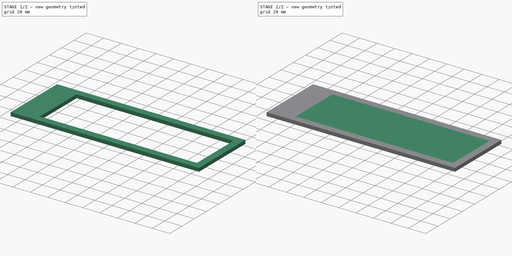
[diagram: build sequence overview — one tinted view per stage of 2, left to right]
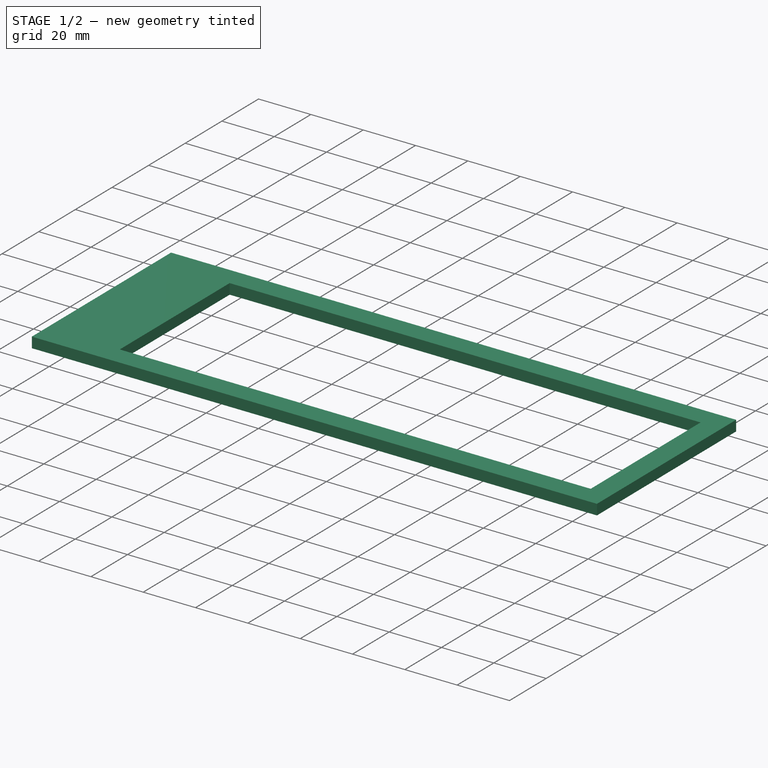
[diagram: stage 1 of 2 — iso view after this stage's code; geometry added in this stage tinted green]
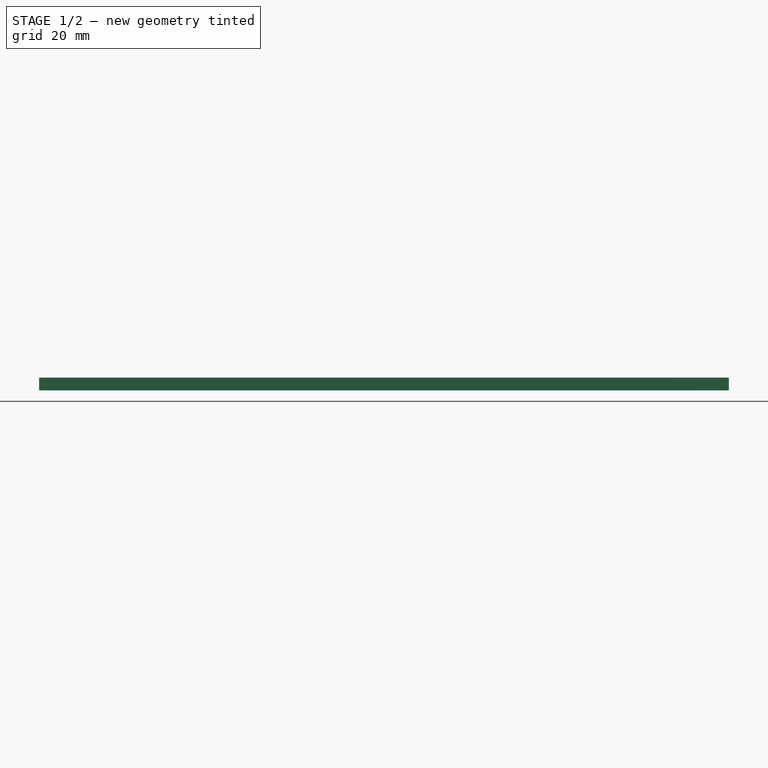
[diagram: stage 1 of 2 — front view after this stage's code; geometry added in this stage tinted green]
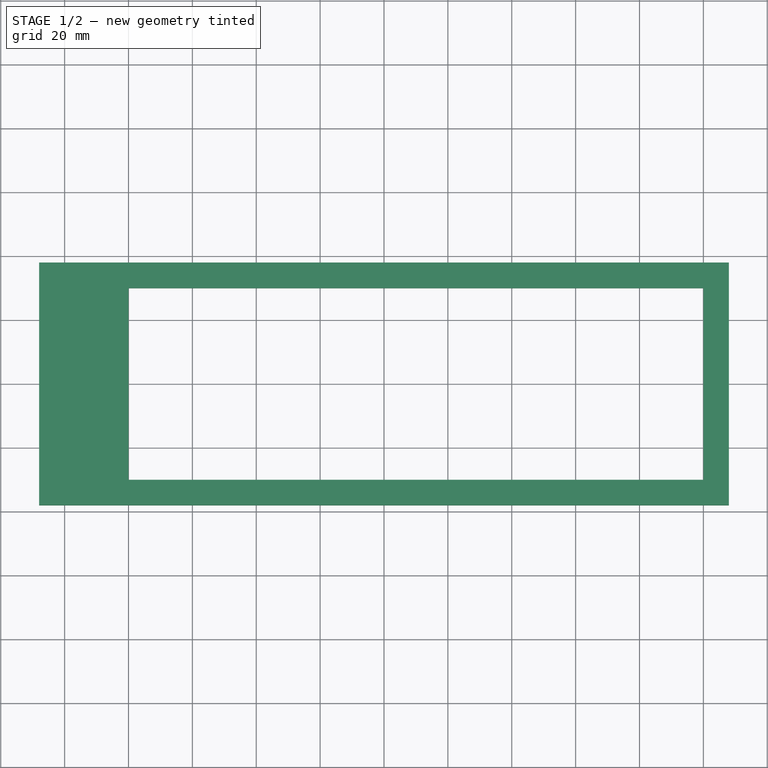
[diagram: stage 1 of 2 — top view after this stage's code; geometry added in this stage tinted green]
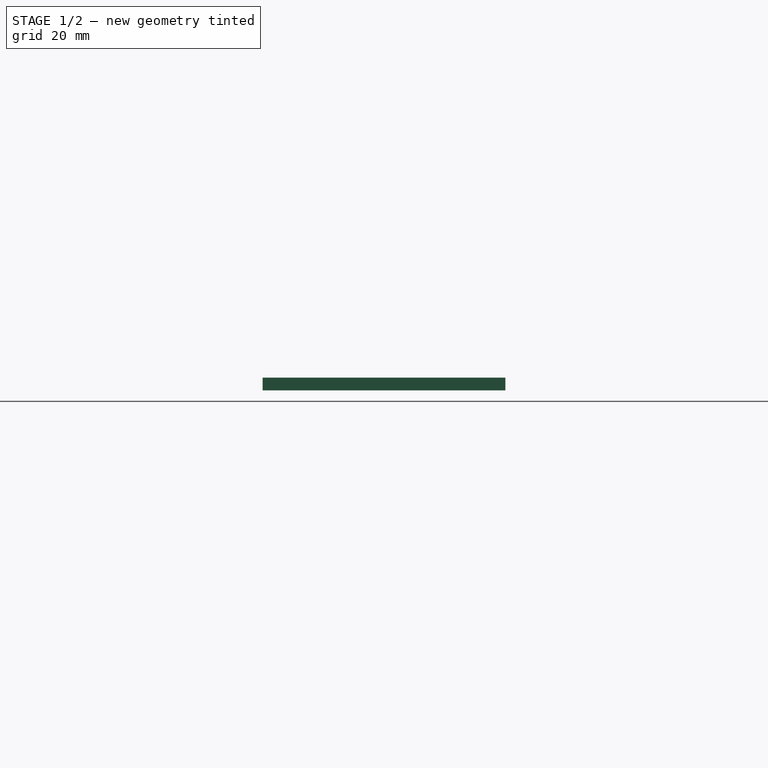
[diagram: stage 1 of 2 — right view after this stage's code; geometry added in this stage tinted green]
FCSTD DOCUMENT  (FreeCAD 0.18.4R)
Label: kerf-test
License: All rights reserved
LicenseURL: http://en.wikipedia.org/wiki/All_rights_reserved
objects: Sketcher::SketchObject×2, PartDesign::Pad×2, Spreadsheet::Sheet×1, PartDesign::LinearPattern×1, PartDesign::Body×1
note: 8 computed .brp shape members not serialized (recipe doc carries the construction recipe); baked Part::Feature solids carry a one-line shape summary decoded from their .brp

FEATURE [Spreadsheet::Sheet] Spreadsheet
  cells = A1=offset; B1(offset)==8mm; A2=width-int; B2(w_int)==200mm; A3=height-int; B3(h_int)==60mm; A4=material thickness; B4(m_thickness)==4mm; A5=total item; B5(total_item)=10
FEATURE [Sketcher::SketchObject] Sketch003
  MapMode = 5
  Support = -> [XY_Plane]
  expr: Constraints[17] = Spreadsheet.h_int + Spreadsheet.offset * 2
  expr: Constraints[14] = Spreadsheet.w_int
  expr: Constraints[16] = Spreadsheet.w_int + Spreadsheet.offset * 2
  expr: Constraints[15] = Spreadsheet.h_int
  sketch-geometry (8):
    g0: LineSegment StartX=-108 StartY=38 StartZ=0 EndX=108 EndY=38 EndZ=0
    g1: LineSegment StartX=108 StartY=38 StartZ=0 EndX=108 EndY=-38 EndZ=0
    g2: LineSegment StartX=108 StartY=-38 StartZ=0 EndX=-108 EndY=-38 EndZ=0
    g3: LineSegment StartX=-108 StartY=-38 StartZ=0 EndX=-108 EndY=38 EndZ=0
    g4: LineSegment StartX=-100 StartY=30 StartZ=0 EndX=100 EndY=30 EndZ=0
    g5: LineSegment StartX=100 StartY=30 StartZ=0 EndX=100 EndY=-30 EndZ=0
    g6: LineSegment StartX=100 StartY=-30 StartZ=0 EndX=-100 EndY=-30 EndZ=0
    g7: LineSegment StartX=-100 StartY=-30 StartZ=0 EndX=-100 EndY=30 EndZ=0
  constraints (20):
    c: Coincident(g0,g1)
    c: Coincident(g1,g2)
    c: Coincident(g2,g3)
    c: Coincident(g3,g0)
    c: Horizontal(g2)
    c: Vertical(g1)
    c: Coincident(g4,g5)
    c: Coincident(g5,g6)
    c: Coincident(g6,g7)
    c: Coincident(g7,g4)
    c: Horizontal(g6)
    c: Vertical(g5)
    c: Symmetric(g4,g4,g-2)
    c: Symmetric(g4,g6,g-1)
    c: DistanceX(g4,g4) = 200
    c: DistanceY(g7,g7) = 60
    c: DistanceX(g0,g0) = 216
    c: DistanceY(g3,g3) = 76
    c: Symmetric(g0,g0,g-2)
    c: Symmetric(g0,g2,g-1)
FEATURE [PartDesign::Pad] Pad
  Length = 4
  Length2 = 100
  Profile = -> Sketch003
  Type = 0
  expr: Length = Spreadsheet.m_thickness
FEATURE [Sketcher::SketchObject] Sketch
  ExternalGeometry = -> [Pad]
  MapMode = 5
  Placement = pos=(0,0,4) rot=(0,0,1;0rad)
  Support = -> [Pad]
  expr: Constraints[8] = Spreadsheet.w_int / Spreadsheet.total_item
  expr: Constraints[7] = Spreadsheet.h_int
  sketch-geometry (4):
    g0: LineSegment StartX=-100 StartY=30 StartZ=0 EndX=-80 EndY=30 EndZ=0
    g1: LineSegment StartX=-80 StartY=30 StartZ=0 EndX=-80 EndY=-30 EndZ=0
    g2: LineSegment StartX=-80 StartY=-30 StartZ=0 EndX=-100 EndY=-30 EndZ=0
    g3: LineSegment StartX=-100 StartY=-30 StartZ=0 EndX=-100 EndY=30 EndZ=0
  constraints (11):
    c: Coincident(g0,g1)
    c: Coincident(g1,g2)
    c: Coincident(g2,g3)
    c: Coincident(g3,g0)
    c: Horizontal(g0)
    c: Horizontal(g2)
    c: Vertical(g1)
    c: DistanceY(g3,g3) = 60
    c: DistanceX(g0,g0) = 20
    c: Symmetric(g0,g2,g-1)
    c: PointOnObject(g0,g-3)
FEATURE [PartDesign::Pad] Pad001
  BaseFeature = -> Pad
  Length = 4
  Length2 = 100
  Profile = -> Sketch
  Reversed = true
  Type = 0
  expr: Length = Spreadsheet.m_thickness
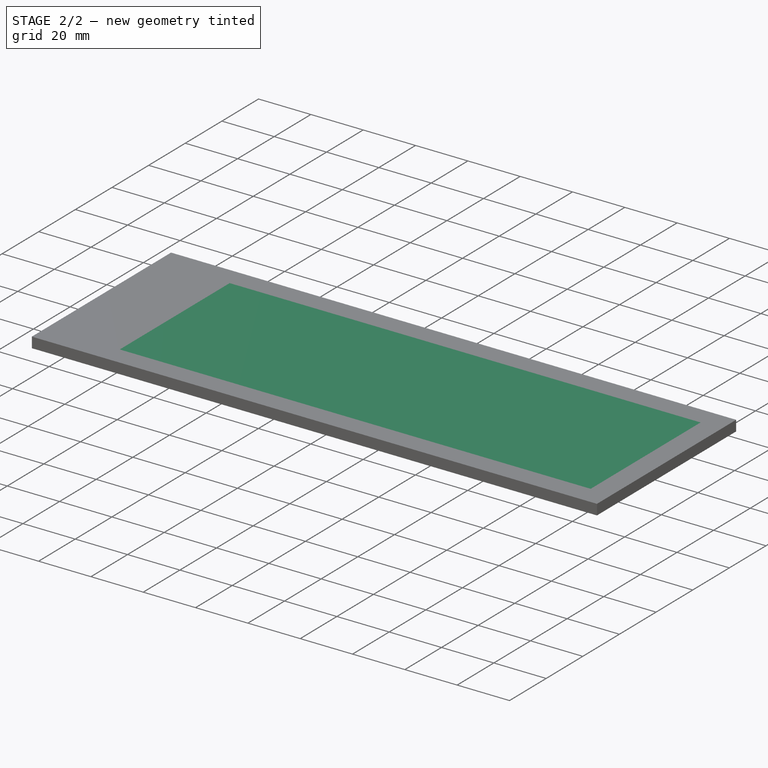
[diagram: stage 2 of 2 — iso view after this stage's code; geometry added in this stage tinted green]
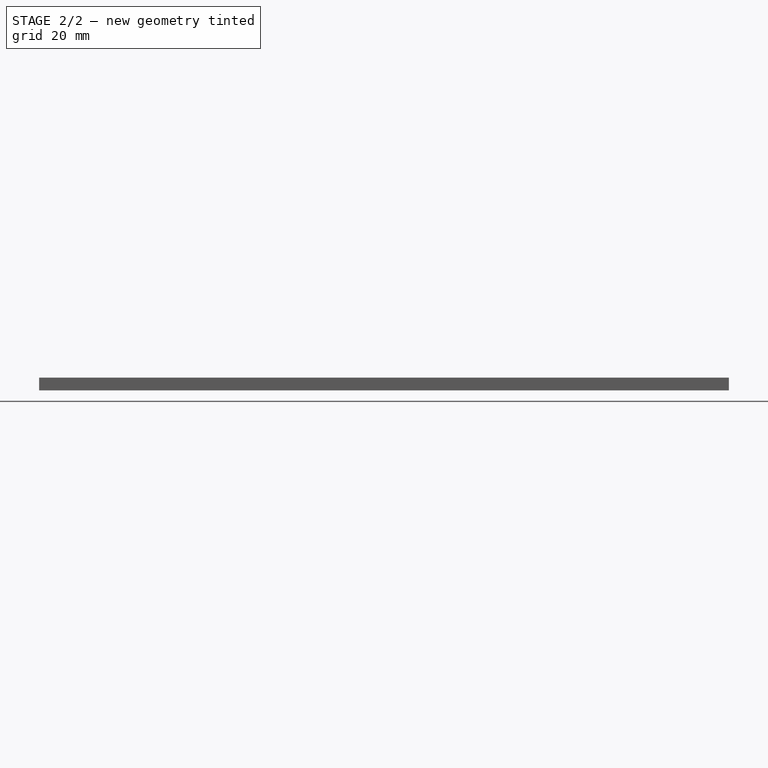
[diagram: stage 2 of 2 — front view after this stage's code; geometry added in this stage tinted green]
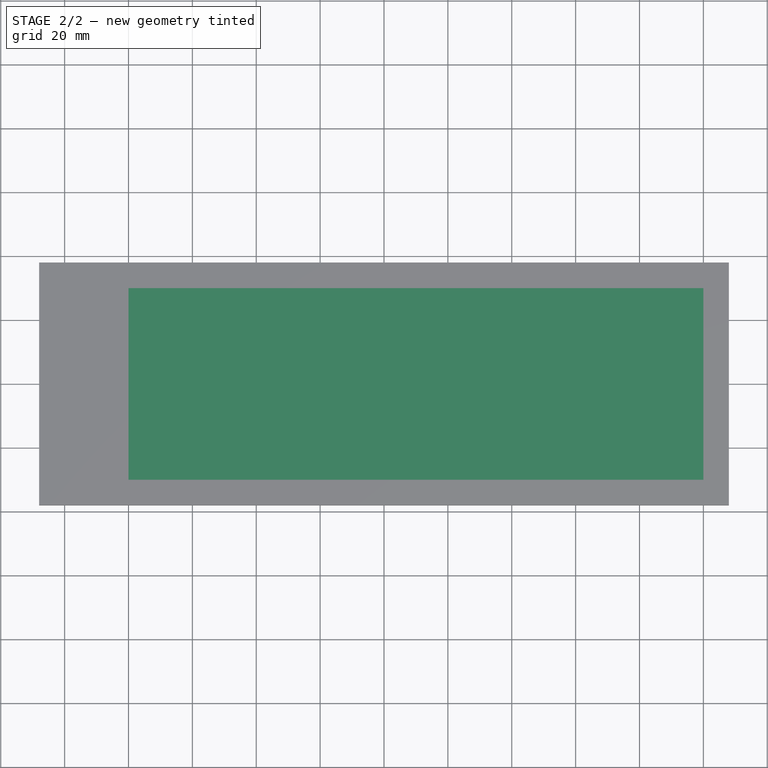
[diagram: stage 2 of 2 — top view after this stage's code; geometry added in this stage tinted green]
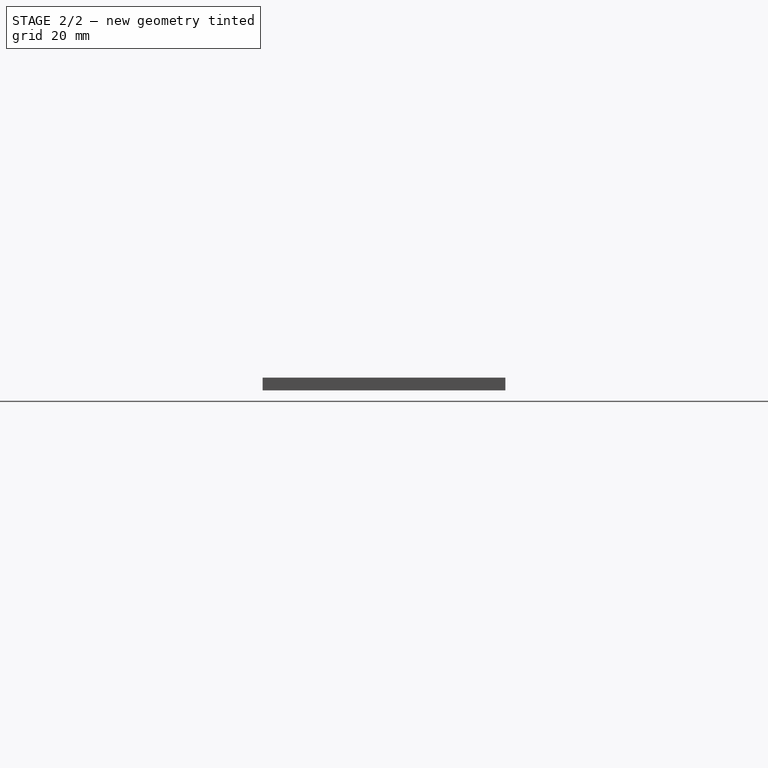
[diagram: stage 2 of 2 — right view after this stage's code; geometry added in this stage tinted green]
FEATURE [PartDesign::LinearPattern] LinearPattern
  BaseFeature = -> Pad001
  Direction = -> X_Axis
  Length = 180
  Occurrences = 10
  Originals = -> [Pad001]
  expr: Length = Spreadsheet.w_int - Spreadsheet.w_int / Spreadsheet.total_item
  expr: Occurrences = Spreadsheet.total_item
FEATURE [PartDesign::Body] Body
  Group = -> [Sketch003,Pad,Sketch,Pad001,LinearPattern]
  Origin = -> Origin
  Tip = -> LinearPattern
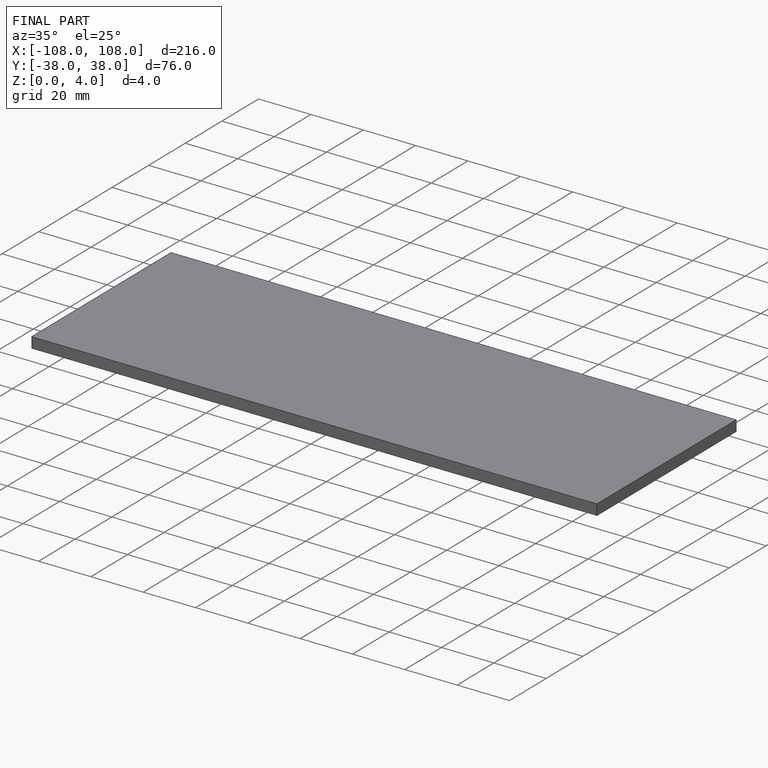
[diagram: finished part — iso view with bounding-box wireframe]
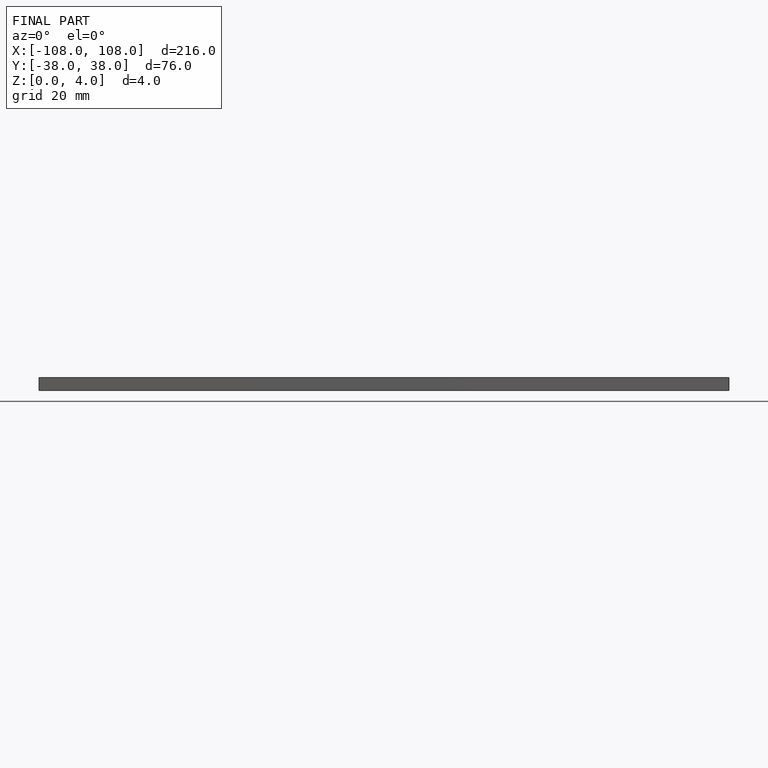
[diagram: finished part — front view with bounding-box wireframe]
